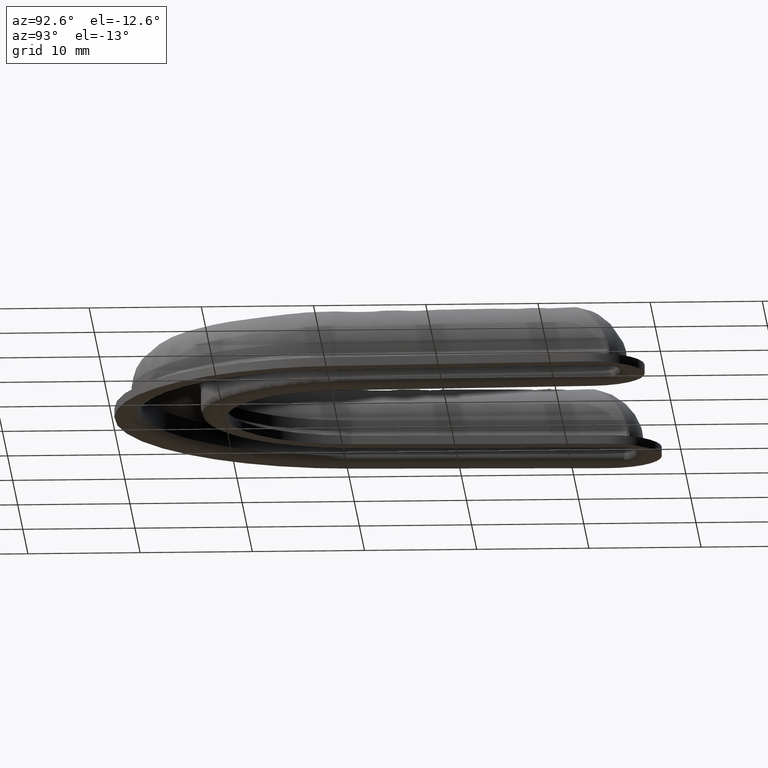
[diagram: clean part render]
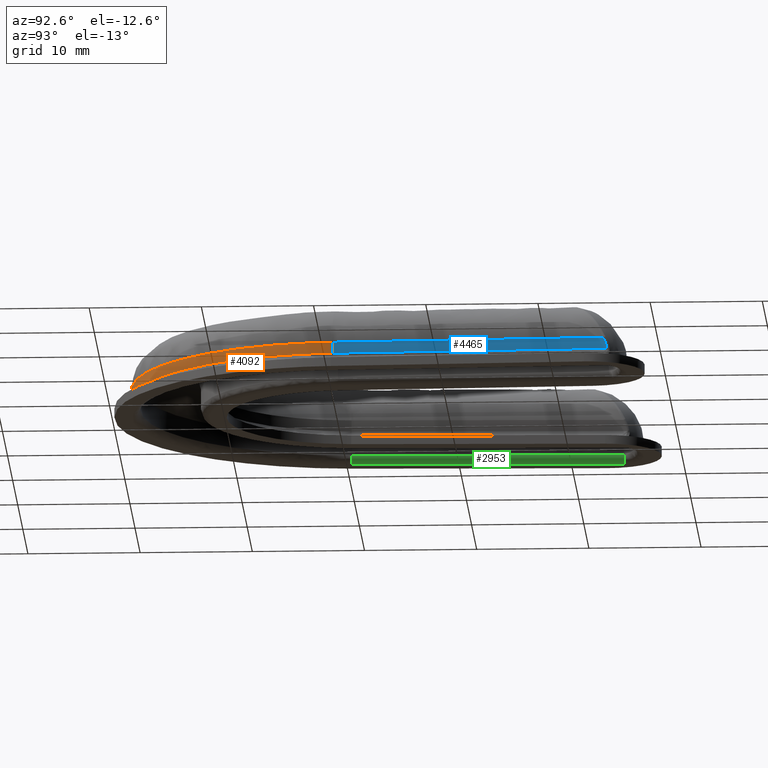
[diagram: same view with three faces highlighted in distinct colors, each labeled with its STEP entity id]
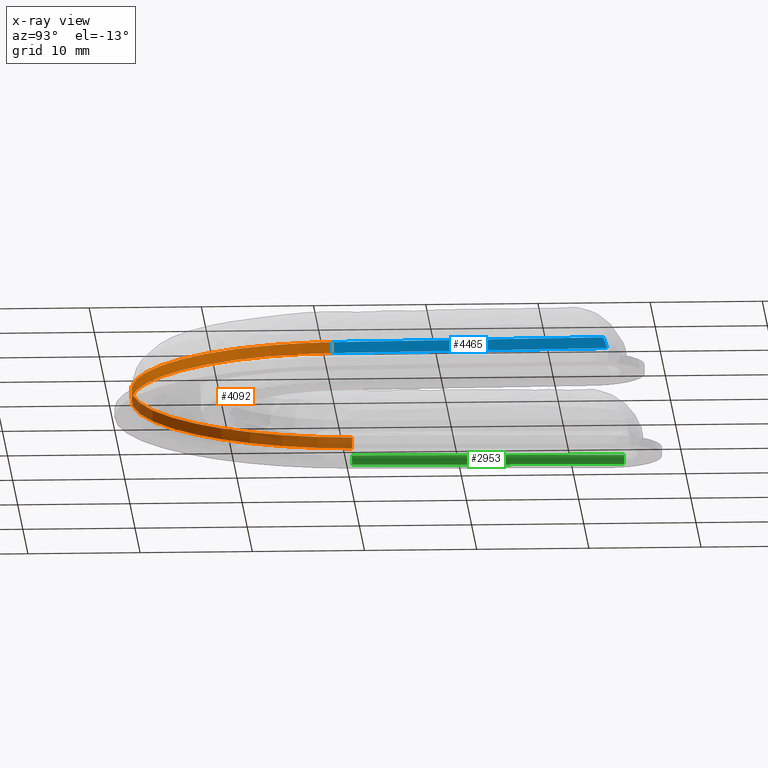
[diagram: x-ray of the same camera — body ghosted, the three highlighted faces saturated]
A machine part, auxiliary view with three faces highlighted in distinct colors.
The next image is the same camera in x-ray (body ghosted, the three faces saturated) — at least one of them is partly hidden behind the body in this view.
Their STEP definitions:

[orange] entity #4092 — the highlighted face is a freeform B-spline surface patch.
#3124=CARTESIAN_POINT('',(19.486924301382651,20.286010313678052,1.500000000000040));
#3125=VERTEX_POINT('',#3124);
#3170=CARTESIAN_POINT('',(-19.486924054735951,20.286010322714951,1.499999999999986));
#3171=VERTEX_POINT('',#3170);
#3203=CARTESIAN_POINT('',(-19.486924054735962,20.286010322714951,1.500000000000000));
#3204=CARTESIAN_POINT('',(-18.798615462066742,1.500000246812401,1.500000000000000));
#3205=CARTESIAN_POINT('',(-2.571673E-015,1.500000246812402,1.500000000000000));
#3206=CARTESIAN_POINT('',(18.798615462066824,1.500000246812401,1.500000000000000));
#3207=CARTESIAN_POINT('',(19.486924301382651,20.286010313678052,1.500000000000040));
#3215=(BOUNDED_CURVE()B_SPLINE_CURVE(2,(#3203,#3204,#3205,#3206,#3207),.UNSPECIFIED.,.F.,.U.)B_SPLINE_CURVE_WITH_KNOTS((3,2,3),(0.0,0.500000000000000,1.0),.UNSPECIFIED.)CURVE()GEOMETRIC_REPRESENTATION_ITEM()RATIONAL_B_SPLINE_CURVE((1.0,0.719935710917587,1.0,0.719935710917587,1.0))REPRESENTATION_ITEM(''));
#3216=EDGE_CURVE('',#3171,#3125,#3215,.T.);
#4042=CARTESIAN_POINT('',(19.499520613293019,20.863302428417040,1.474999999999986));
#4043=CARTESIAN_POINT('',(19.499520613293019,20.863302428417040,2.525625000000001));
#4044=CARTESIAN_POINT('',(19.360416153848856,1.020446092917709,1.474999999999986));
#4045=CARTESIAN_POINT('',(19.360416153848856,1.020446092917709,2.525625000000001));
#4046=CARTESIAN_POINT('',(-0.476990310956081,1.505834959722691,1.474999999999986));
#4047=CARTESIAN_POINT('',(-0.476990310956081,1.505834959722691,2.525625000000001));
#4048=CARTESIAN_POINT('',(-20.314396775761026,1.991223826527669,1.474999999999986));
#4049=CARTESIAN_POINT('',(-20.314396775761026,1.991223826527669,2.525625000000001));
#4050=CARTESIAN_POINT('',(-19.482871355746109,21.817137754459772,1.474999999999986));
#4051=CARTESIAN_POINT('',(-19.482871355746109,21.817137754459772,2.525625000000001));
#4059=(BOUNDED_SURFACE()B_SPLINE_SURFACE(1,2,((#4042,#4044,#4046,#4048,#4050),(#4043,#4045,#4047,#4049,#4051)),.UNSPECIFIED.,.F.,.F.,.U.)B_SPLINE_SURFACE_WITH_KNOTS((2,2),(3,2,3),(0.0,1.0),(0.0,32.708114123166048,65.416228246332096),.UNSPECIFIED.)GEOMETRIC_REPRESENTATION_ITEM()RATIONAL_B_SPLINE_SURFACE(((1.0,0.700909264299851,1.0,0.700909264299851,1.0),(1.0,0.700909264299851,1.0,0.700909264299851,1.0)))REPRESENTATION_ITEM('')SURFACE());
#4060=CARTESIAN_POINT('',(-19.486924054736150,20.286010322714951,2.500000000000000));
#4061=VERTEX_POINT('',#4060);
#4062=CARTESIAN_POINT('',(-19.486924054736150,20.286010322714951,2.500000000000000));
#4063=CARTESIAN_POINT('',(-19.486924054735951,20.286010322714951,1.499999999999986));
#4064=QUASI_UNIFORM_CURVE('',1,(#4062,#4063),.UNSPECIFIED.,.F.,.U.);
#4065=EDGE_CURVE('',#4061,#3171,#4064,.T.);
#4066=ORIENTED_EDGE('',*,*,#4065,.T.);
#4067=ORIENTED_EDGE('',*,*,#3216,.T.);
#4068=CARTESIAN_POINT('',(19.486924301382849,20.286010313678052,2.500000000000000));
#4069=VERTEX_POINT('',#4068);
#4070=CARTESIAN_POINT('',(19.486924301382849,20.286010313678052,2.500000000000000));
#4071=CARTESIAN_POINT('',(19.486924301382651,20.286010313678052,1.500000000000040));
#4072=QUASI_UNIFORM_CURVE('',1,(#4070,#4071),.UNSPECIFIED.,.F.,.U.);
#4073=EDGE_CURVE('',#4069,#3125,#4072,.T.);
#4074=ORIENTED_EDGE('',*,*,#4073,.F.);
#4075=CARTESIAN_POINT('',(-19.486924054736150,20.286010322714951,2.500000000000000));
#4076=CARTESIAN_POINT('',(-18.798615700001665,1.499999999999939,2.500000000000000));
#4077=CARTESIAN_POINT('',(6.150468E-014,1.500000000000001,2.500000000000000));
#4078=CARTESIAN_POINT('',(18.798615700001786,1.500000000000064,2.500000000000000));
#4079=CARTESIAN_POINT('',(19.486924301382860,20.286010313678059,2.500000000000000));
#4087=(BOUNDED_CURVE()B_SPLINE_CURVE(2,(#4075,#4076,#4077,#4078,#4079),.UNSPECIFIED.,.F.,.U.)B_SPLINE_CURVE_WITH_KNOTS((3,2,3),(0.0,0.500000000000000,1.0),.UNSPECIFIED.)CURVE()GEOMETRIC_REPRESENTATION_ITEM()RATIONAL_B_SPLINE_CURVE((1.0,0.719935710917586,1.0,0.719935710917586,1.0))REPRESENTATION_ITEM(''));
#4088=EDGE_CURVE('',#4061,#4069,#4087,.T.);
#4089=ORIENTED_EDGE('',*,*,#4088,.F.);
#4090=EDGE_LOOP('',(#4066,#4067,#4074,#4089));
#4091=FACE_OUTER_BOUND('',#4090,.T.);
#4092=ADVANCED_FACE('',(#4091),#4059,.T.);

[blue] entity #4465 — the highlighted face is a freeform B-spline surface patch.
#1372=CARTESIAN_POINT('',(20.372942905183951,44.468120773613563,2.500000000000000));
#1373=VERTEX_POINT('',#1372);
#1489=CARTESIAN_POINT('',(20.385600256136200,44.813577920387146,1.500000000000040));
#1490=VERTEX_POINT('',#1489);
#1520=CARTESIAN_POINT('',(20.385600256136190,44.813577920387146,1.500000000000039));
#1521=CARTESIAN_POINT('',(20.381908528775117,44.712819585911525,2.024896010164620));
#1522=CARTESIAN_POINT('',(20.372942905183940,44.468120773613563,2.500000000000004));
#1530=(BOUNDED_CURVE()B_SPLINE_CURVE(2,(#1520,#1521,#1522),.UNSPECIFIED.,.F.,.U.)CURVE()GEOMETRIC_REPRESENTATION_ITEM()QUASI_UNIFORM_CURVE()RATIONAL_B_SPLINE_CURVE((1.0,0.989785330773275,1.0))REPRESENTATION_ITEM(''));
#1531=EDGE_CURVE('',#1490,#1373,#1530,.T.);
#3124=CARTESIAN_POINT('',(19.486924301382651,20.286010313678052,1.500000000000040));
#3125=VERTEX_POINT('',#3124);
#3126=CARTESIAN_POINT('',(19.486924301382651,20.286010313678052,1.500000000000040));
#3127=CARTESIAN_POINT('',(20.385600256136200,44.813577920387146,1.500000000000040));
#3128=QUASI_UNIFORM_CURVE('',1,(#3126,#3127),.UNSPECIFIED.,.F.,.U.);
#3129=EDGE_CURVE('',#3125,#1490,#3128,.T.);
#4068=CARTESIAN_POINT('',(19.486924301382849,20.286010313678052,2.500000000000000));
#4069=VERTEX_POINT('',#4068);
#4070=CARTESIAN_POINT('',(19.486924301382849,20.286010313678052,2.500000000000000));
#4071=CARTESIAN_POINT('',(19.486924301382651,20.286010313678052,1.500000000000040));
#4072=QUASI_UNIFORM_CURVE('',1,(#4070,#4071),.UNSPECIFIED.,.F.,.U.);
#4073=EDGE_CURVE('',#4069,#3125,#4072,.T.);
#4450=CARTESIAN_POINT('',(19.442035452846071,19.060858732126938,1.450050001938236));
#4451=CARTESIAN_POINT('',(20.430489209125021,46.038732352754330,1.450050001938236));
#4452=CARTESIAN_POINT('',(19.442035452846071,19.060858732126938,2.549950024883894));
#4453=CARTESIAN_POINT('',(20.430489209125021,46.038732352754330,2.549950024883894));
#4454=B_SPLINE_SURFACE_WITH_KNOTS('',1,1,((#4450,#4452),(#4451,#4453)),.UNSPECIFIED.,.F.,.F.,.U.,(2,2),(2,2),(0.0,26.995975735632260),(0.041708334948495,0.958291687403247),.UNSPECIFIED.);
#4455=ORIENTED_EDGE('',*,*,#3129,.T.);
#4456=ORIENTED_EDGE('',*,*,#1531,.T.);
#4457=CARTESIAN_POINT('',(19.486924301382849,20.286010313678052,2.500000000000000));
#4458=CARTESIAN_POINT('',(20.372942905183951,44.468120773613563,2.500000000000000));
#4459=QUASI_UNIFORM_CURVE('',1,(#4457,#4458),.UNSPECIFIED.,.F.,.U.);
#4460=EDGE_CURVE('',#4069,#1373,#4459,.T.);
#4461=ORIENTED_EDGE('',*,*,#4460,.F.);
#4462=ORIENTED_EDGE('',*,*,#4073,.T.);
#4463=EDGE_LOOP('',(#4455,#4456,#4461,#4462));
#4464=FACE_OUTER_BOUND('',#4463,.T.);
#4465=ADVANCED_FACE('',(#4464),#4454,.T.);

[green] entity #2953 — the highlighted face is a freeform B-spline surface patch.
#294=CARTESIAN_POINT('',(-19.574363905269500,44.521561731599093,0.700000000000000));
#295=VERTEX_POINT('',#294);
#296=CARTESIAN_POINT('',(-20.273894521216551,44.495931332602900,9.796851E-017));
#297=VERTEX_POINT('',#296);
#298=CARTESIAN_POINT('',(-19.574363905269468,44.521561731599071,0.700000000000000));
#299=CARTESIAN_POINT('',(-19.574363905269468,44.521561731599071,0.0));
#300=CARTESIAN_POINT('',(-20.273894521216551,44.495931332602900,0.0));
#308=(BOUNDED_CURVE()B_SPLINE_CURVE(2,(#298,#299,#300),.UNSPECIFIED.,.F.,.U.)CURVE()GEOMETRIC_REPRESENTATION_ITEM()QUASI_UNIFORM_CURVE()RATIONAL_B_SPLINE_CURVE((1.0,0.707106781186547,1.0))REPRESENTATION_ITEM(''));
#309=EDGE_CURVE('',#295,#297,#308,.T.);
#2874=CARTESIAN_POINT('',(-19.386991109600650,20.289671808285849,9.796851E-017));
#2875=VERTEX_POINT('',#2874);
#2876=CARTESIAN_POINT('',(-18.687460493653600,20.315302207281999,0.700000000000000));
#2877=VERTEX_POINT('',#2876);
#2878=CARTESIAN_POINT('',(-19.386991109600650,20.289671808285849,0.0));
#2879=CARTESIAN_POINT('',(-18.687460493653578,20.315302207282031,0.0));
#2880=CARTESIAN_POINT('',(-18.687460493653571,20.315302207282020,0.700000000000000));
#2888=(BOUNDED_CURVE()B_SPLINE_CURVE(2,(#2878,#2879,#2880),.UNSPECIFIED.,.F.,.U.)CURVE()GEOMETRIC_REPRESENTATION_ITEM()QUASI_UNIFORM_CURVE()RATIONAL_B_SPLINE_CURVE((1.0,0.707106781186547,1.0))REPRESENTATION_ITEM(''));
#2889=EDGE_CURVE('',#2875,#2877,#2888,.T.);
#2925=CARTESIAN_POINT('',(-19.370923003062519,19.684291655591220,0.000026653855080));
#2926=CARTESIAN_POINT('',(-20.302725899891470,45.115993068326873,0.000026653855080));
#2927=CARTESIAN_POINT('',(-18.633799611420791,19.711299432243873,-0.006410440914432));
#2928=CARTESIAN_POINT('',(-19.565602508249736,45.143000844979525,-0.006410440914432));
#2929=CARTESIAN_POINT('',(-18.665953706506279,19.710121324713459,0.730533571155743));
#2930=CARTESIAN_POINT('',(-19.597756603335242,45.141822737449097,0.730533571155741));
#2938=(BOUNDED_SURFACE()B_SPLINE_SURFACE(1,2,((#2925,#2927,#2929),(#2926,#2928,#2930)),.UNSPECIFIED.,.F.,.F.,.U.)B_SPLINE_SURFACE_WITH_KNOTS((2,2),(3,3),(0.0,25.448766048378040),(0.0,1.0),.UNSPECIFIED.)GEOMETRIC_REPRESENTATION_ITEM()RATIONAL_B_SPLINE_SURFACE(((1.0,0.688354575693754,1.0),(1.0,0.688354575693754,1.0)))REPRESENTATION_ITEM('')SURFACE());
#2939=CARTESIAN_POINT('',(-20.273894521216551,44.495931332602900,9.796851E-017));
#2940=CARTESIAN_POINT('',(-19.386991109600650,20.289671808285849,9.796851E-017));
#2941=QUASI_UNIFORM_CURVE('',1,(#2939,#2940),.UNSPECIFIED.,.F.,.U.);
#2942=EDGE_CURVE('',#297,#2875,#2941,.T.);
#2943=ORIENTED_EDGE('',*,*,#2942,.F.);
#2944=ORIENTED_EDGE('',*,*,#309,.F.);
#2945=CARTESIAN_POINT('',(-18.687460493653600,20.315302207281999,0.700000000000000));
#2946=CARTESIAN_POINT('',(-19.574363905269500,44.521561731599093,0.700000000000000));
#2947=QUASI_UNIFORM_CURVE('',1,(#2945,#2946),.UNSPECIFIED.,.F.,.U.);
#2948=EDGE_CURVE('',#2877,#295,#2947,.T.);
#2949=ORIENTED_EDGE('',*,*,#2948,.F.);
#2950=ORIENTED_EDGE('',*,*,#2889,.F.);
#2951=EDGE_LOOP('',(#2943,#2944,#2949,#2950));
#2952=FACE_OUTER_BOUND('',#2951,.T.);
#2953=ADVANCED_FACE('',(#2952),#2938,.T.);